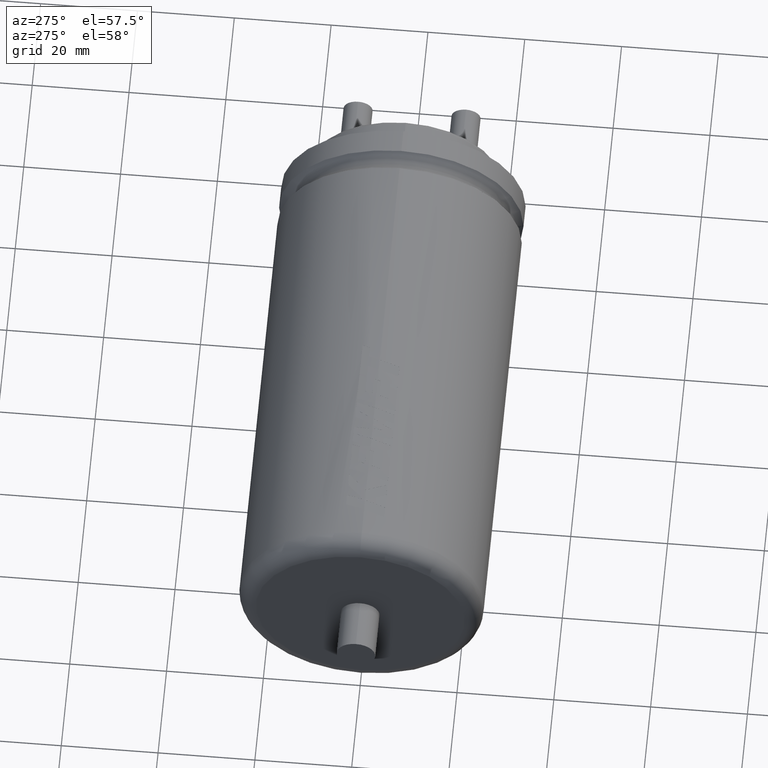
[diagram: clean part render]
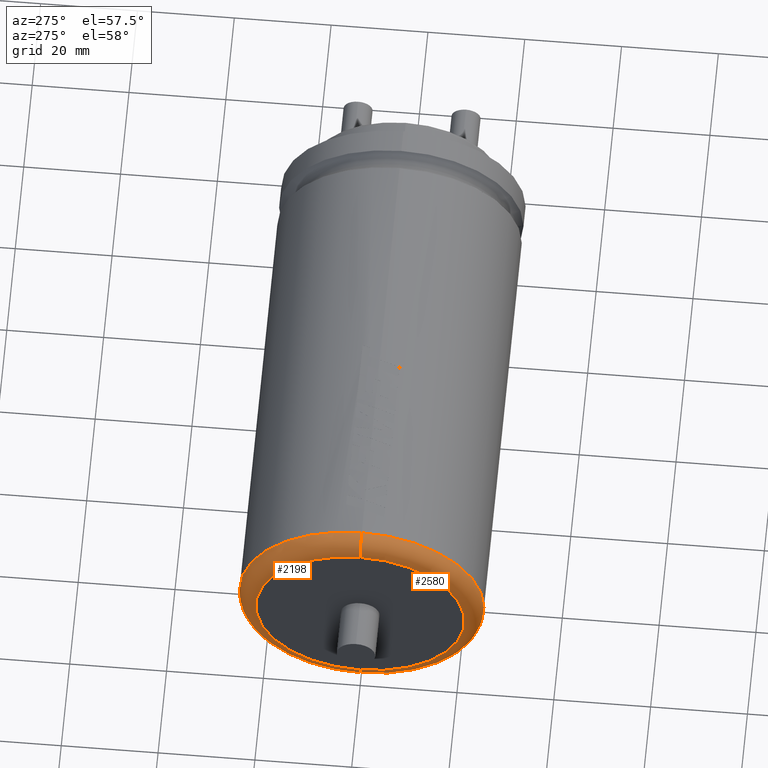
[diagram: same view with one multi-face feature highlighted, each face labeled with its STEP entity id]
A machine part, auxiliary view. The highlighted faces form ONE feature: a constant-radius fillet chain: 2 tangent blend faces with common blend radius 3.6771 mm. The faces share edges in the B-rep.
Their STEP definitions:
[1] entity #2580 (Torus):
#81 = ORIENTED_EDGE ( 'NONE', *, *, #178, .F. ) ;
#99 = CARTESIAN_POINT ( 'NONE',  ( 3.677100000000002500, 0.0000000000000000000, 25.25000000000000000 ) ) ;
#171 = FACE_OUTER_BOUND ( 'NONE', #1750, .T. ) ;
#178 = EDGE_CURVE ( 'NONE', #1633, #2682, #3992, .T. ) ;
#347 = CIRCLE ( 'NONE', #2217, 21.57290000000000400 ) ;
#549 = DIRECTION ( 'NONE',  ( -1.000000000000000000, -0.0000000000000000000, -0.0000000000000000000 ) ) ;
#677 = DIRECTION ( 'NONE',  ( 0.0000000000000000000, 0.0000000000000000000, -1.000000000000000000 ) ) ;
#778 = CIRCLE ( 'NONE', #2363, 3.677099999999998900 ) ;
#794 = CARTESIAN_POINT ( 'NONE',  ( 3.677100000000002500, 3.092233167847066800E-015, -25.25000000000000000 ) ) ;
#1017 = EDGE_CURVE ( 'NONE', #3570, #1551, #347, .T. ) ;
#1033 = AXIS2_PLACEMENT_3D ( 'NONE', #2629, #2309, #3859 ) ;
#1046 = CIRCLE ( 'NONE', #4010, 3.677099999999998900 ) ;
#1235 = TOROIDAL_SURFACE ( 'NONE', #1033, 21.57290000000000400, 3.677100000000000300 ) ;
#1301 = DIRECTION ( 'NONE',  ( 0.0000000000000000000, -1.000000000000000000, 0.0000000000000000000 ) ) ;
#1349 = ORIENTED_EDGE ( 'NONE', *, *, #1017, .F. ) ;
#1497 = EDGE_CURVE ( 'NONE', #1551, #1633, #778, .T. ) ;
#1551 = VERTEX_POINT ( 'NONE', #3751 ) ;
#1594 = DIRECTION ( 'NONE',  ( 0.0000000000000000000, 1.224646799147353200E-016, 1.000000000000000000 ) ) ;
#1618 = CARTESIAN_POINT ( 'NONE',  ( 3.677100000000002500, 0.0000000000000000000, -21.57290000000000400 ) ) ;
#1633 = VERTEX_POINT ( 'NONE', #99 ) ;
#1750 = EDGE_LOOP ( 'NONE', ( #2755, #1349, #2673, #81 ) ) ;
#1861 = DIRECTION ( 'NONE',  ( 1.000000000000000000, 0.0000000000000000000, 0.0000000000000000000 ) ) ;
#1932 = CARTESIAN_POINT ( 'NONE',  ( 0.0000000000000000000, 0.0000000000000000000, -21.57290000000000400 ) ) ;
#1977 = EDGE_CURVE ( 'NONE', #3570, #2682, #1046, .T. ) ;
#2217 = AXIS2_PLACEMENT_3D ( 'NONE', #3654, #549, #2434 ) ;
#2309 = DIRECTION ( 'NONE',  ( 1.000000000000000000, 0.0000000000000000000, 0.0000000000000000000 ) ) ;
#2363 = AXIS2_PLACEMENT_3D ( 'NONE', #2822, #3450, #1594 ) ;
#2434 = DIRECTION ( 'NONE',  ( 0.0000000000000000000, 0.0000000000000000000, -1.000000000000000000 ) ) ;
#2580 = ADVANCED_FACE ( 'NONE', ( #171 ), #1235, .T. ) ;
#2629 = CARTESIAN_POINT ( 'NONE',  ( 3.677100000000002500, 0.0000000000000000000, 0.0000000000000000000 ) ) ;
#2673 = ORIENTED_EDGE ( 'NONE', *, *, #1977, .T. ) ;
#2682 = VERTEX_POINT ( 'NONE', #794 ) ;
#2755 = ORIENTED_EDGE ( 'NONE', *, *, #1497, .F. ) ;
#2822 = CARTESIAN_POINT ( 'NONE',  ( 3.677100000000002500, 2.641918293332593800E-015, 21.57290000000000400 ) ) ;
#2925 = AXIS2_PLACEMENT_3D ( 'NONE', #3734, #1861, #677 ) ;
#3386 = DIRECTION ( 'NONE',  ( 0.0000000000000000000, 0.0000000000000000000, -1.000000000000000000 ) ) ;
#3450 = DIRECTION ( 'NONE',  ( 0.0000000000000000000, 1.000000000000000000, -1.224646799147353200E-016 ) ) ;
#3570 = VERTEX_POINT ( 'NONE', #1932 ) ;
#3654 = CARTESIAN_POINT ( 'NONE',  ( 0.0000000000000000000, 0.0000000000000000000, 0.0000000000000000000 ) ) ;
#3734 = CARTESIAN_POINT ( 'NONE',  ( 3.677100000000002500, 0.0000000000000000000, 0.0000000000000000000 ) ) ;
#3751 = CARTESIAN_POINT ( 'NONE',  ( 0.0000000000000000000, 2.867075730589830500E-015, 21.57290000000000400 ) ) ;
#3859 = DIRECTION ( 'NONE',  ( 0.0000000000000000000, 0.0000000000000000000, -1.000000000000000000 ) ) ;
#3992 = CIRCLE ( 'NONE', #2925, 25.25000000000000000 ) ;
#4010 = AXIS2_PLACEMENT_3D ( 'NONE', #1618, #1301, #3386 ) ;
[2] entity #2198 (Torus):
#99 = CARTESIAN_POINT ( 'NONE',  ( 3.677100000000002500, 0.0000000000000000000, 25.25000000000000000 ) ) ;
#479 = CARTESIAN_POINT ( 'NONE',  ( 0.0000000000000000000, 0.0000000000000000000, 0.0000000000000000000 ) ) ;
#592 = CARTESIAN_POINT ( 'NONE',  ( 3.677100000000002500, 0.0000000000000000000, 0.0000000000000000000 ) ) ;
#778 = CIRCLE ( 'NONE', #2363, 3.677099999999998900 ) ;
#794 = CARTESIAN_POINT ( 'NONE',  ( 3.677100000000002500, 3.092233167847066800E-015, -25.25000000000000000 ) ) ;
#1046 = CIRCLE ( 'NONE', #4010, 3.677099999999998900 ) ;
#1056 = ORIENTED_EDGE ( 'NONE', *, *, #3364, .F. ) ;
#1148 = DIRECTION ( 'NONE',  ( -1.000000000000000000, -0.0000000000000000000, -0.0000000000000000000 ) ) ;
#1246 = DIRECTION ( 'NONE',  ( 1.000000000000000000, 0.0000000000000000000, 0.0000000000000000000 ) ) ;
#1301 = DIRECTION ( 'NONE',  ( 0.0000000000000000000, -1.000000000000000000, 0.0000000000000000000 ) ) ;
#1435 = DIRECTION ( 'NONE',  ( 0.0000000000000000000, 0.0000000000000000000, -1.000000000000000000 ) ) ;
#1497 = EDGE_CURVE ( 'NONE', #1551, #1633, #778, .T. ) ;
#1551 = VERTEX_POINT ( 'NONE', #3751 ) ;
#1594 = DIRECTION ( 'NONE',  ( 0.0000000000000000000, 1.224646799147353200E-016, 1.000000000000000000 ) ) ;
#1618 = CARTESIAN_POINT ( 'NONE',  ( 3.677100000000002500, 0.0000000000000000000, -21.57290000000000400 ) ) ;
#1619 = AXIS2_PLACEMENT_3D ( 'NONE', #479, #1148, #1435 ) ;
#1633 = VERTEX_POINT ( 'NONE', #99 ) ;
#1637 = DIRECTION ( 'NONE',  ( 0.0000000000000000000, 0.0000000000000000000, -1.000000000000000000 ) ) ;
#1766 = EDGE_CURVE ( 'NONE', #1551, #3570, #2450, .T. ) ;
#1916 = ORIENTED_EDGE ( 'NONE', *, *, #1497, .T. ) ;
#1932 = CARTESIAN_POINT ( 'NONE',  ( 0.0000000000000000000, 0.0000000000000000000, -21.57290000000000400 ) ) ;
#1977 = EDGE_CURVE ( 'NONE', #3570, #2682, #1046, .T. ) ;
#2078 = FACE_OUTER_BOUND ( 'NONE', #3043, .T. ) ;
#2161 = DIRECTION ( 'NONE',  ( 0.0000000000000000000, 0.0000000000000000000, -1.000000000000000000 ) ) ;
#2198 = ADVANCED_FACE ( 'NONE', ( #2078 ), #3462, .T. ) ;
#2363 = AXIS2_PLACEMENT_3D ( 'NONE', #2822, #3450, #1594 ) ;
#2450 = CIRCLE ( 'NONE', #1619, 21.57290000000000400 ) ;
#2682 = VERTEX_POINT ( 'NONE', #794 ) ;
#2711 = ORIENTED_EDGE ( 'NONE', *, *, #1766, .F. ) ;
#2822 = CARTESIAN_POINT ( 'NONE',  ( 3.677100000000002500, 2.641918293332593800E-015, 21.57290000000000400 ) ) ;
#2972 = AXIS2_PLACEMENT_3D ( 'NONE', #592, #1246, #2161 ) ;
#3043 = EDGE_LOOP ( 'NONE', ( #2711, #1916, #1056, #3091 ) ) ;
#3091 = ORIENTED_EDGE ( 'NONE', *, *, #1977, .F. ) ;
#3246 = CARTESIAN_POINT ( 'NONE',  ( 3.677100000000002500, 0.0000000000000000000, 0.0000000000000000000 ) ) ;
#3364 = EDGE_CURVE ( 'NONE', #2682, #1633, #3941, .T. ) ;
#3386 = DIRECTION ( 'NONE',  ( 0.0000000000000000000, 0.0000000000000000000, -1.000000000000000000 ) ) ;
#3450 = DIRECTION ( 'NONE',  ( 0.0000000000000000000, 1.000000000000000000, -1.224646799147353200E-016 ) ) ;
#3462 = TOROIDAL_SURFACE ( 'NONE', #3714, 21.57290000000000400, 3.677100000000000300 ) ;
#3570 = VERTEX_POINT ( 'NONE', #1932 ) ;
#3714 = AXIS2_PLACEMENT_3D ( 'NONE', #3246, #3872, #1637 ) ;
#3751 = CARTESIAN_POINT ( 'NONE',  ( 0.0000000000000000000, 2.867075730589830500E-015, 21.57290000000000400 ) ) ;
#3872 = DIRECTION ( 'NONE',  ( 1.000000000000000000, 0.0000000000000000000, 0.0000000000000000000 ) ) ;
#3941 = CIRCLE ( 'NONE', #2972, 25.25000000000000000 ) ;
#4010 = AXIS2_PLACEMENT_3D ( 'NONE', #1618, #1301, #3386 ) ;